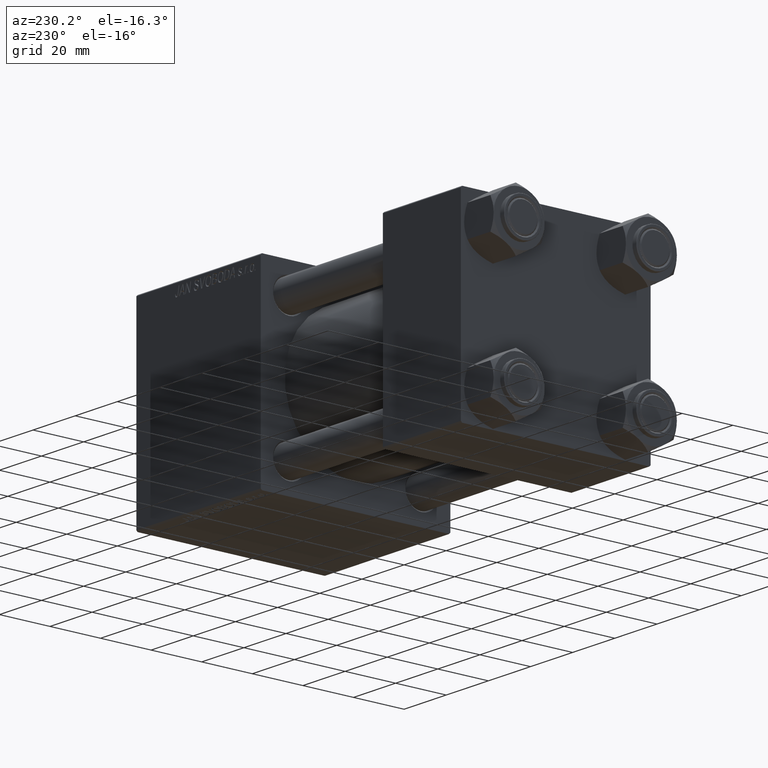
[diagram: clean part render]
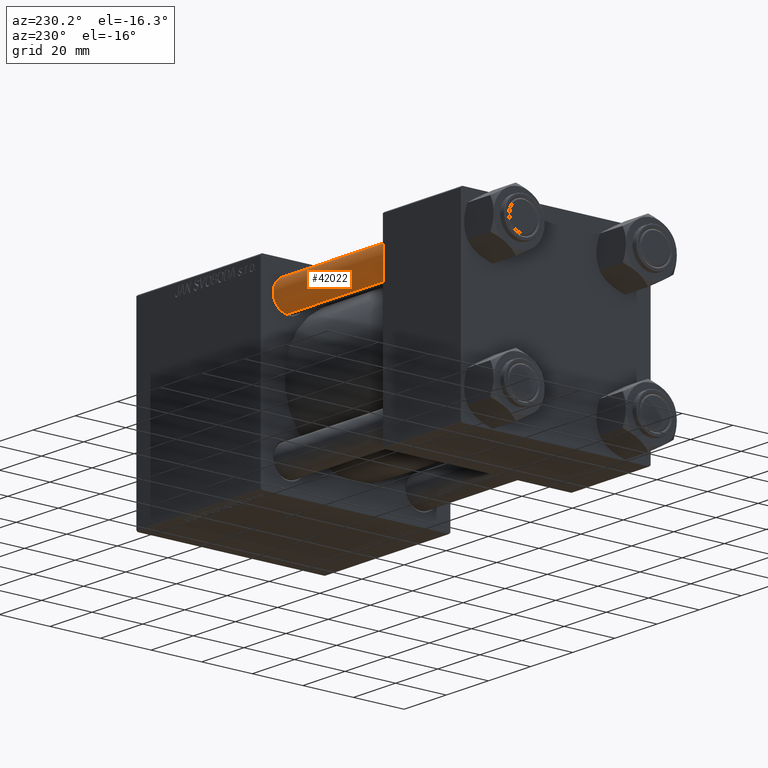
[diagram: same view with one face highlighted and labeled with its STEP entity id]
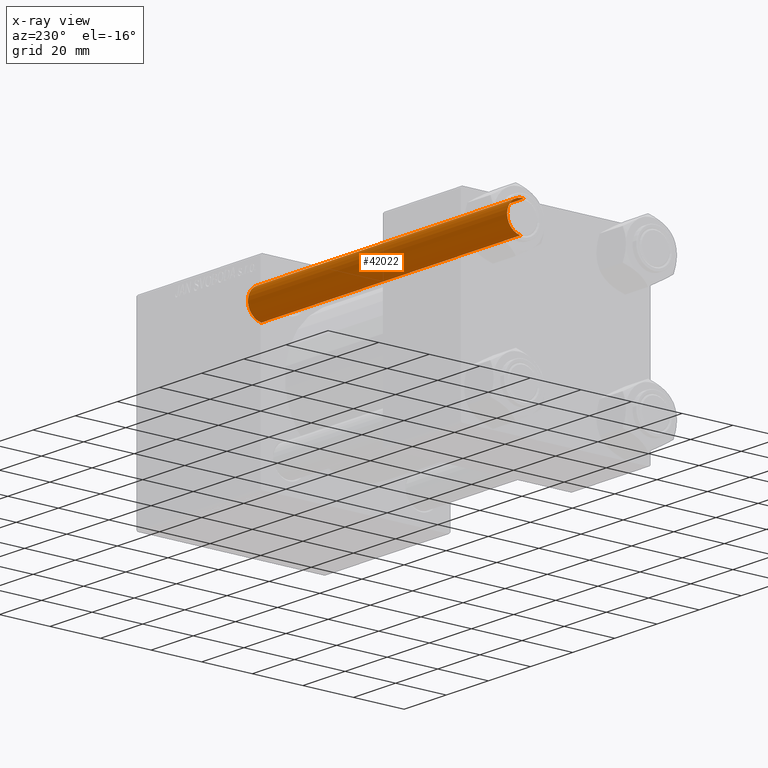
[diagram: x-ray of the same camera — body ghosted, the highlighted face saturated]
A machine part, auxiliary view. The second image highlights one B-rep face of the part: STEP entity #42022.
The next image is the same camera in x-ray: the body ghosted, the highlighted face saturated — about 0% of this face is hidden behind the body in this view.
In plain terms, the highlighted cylindrical surface (edge-blend (fillet) strip) has radius 6 mm, axis along (-1, 0, 0).
Its self-contained STEP definition (entity closure, byte-faithful):
#2367 = CARTESIAN_POINT ( 'NONE',  ( 6.000000000000000888, 7.347880794884120722E-16, 123.5000000000000426 ) ) ;
#2430 = ORIENTED_EDGE ( 'NONE', *, *, #5201, .T. ) ;
#4036 = EDGE_CURVE ( 'NONE', #18963, #17575, #44673, .T. ) ;
#5201 = EDGE_CURVE ( 'NONE', #28241, #17575, #13118, .T. ) ;
#6894 = CARTESIAN_POINT ( 'NONE',  ( 6.000000000000000888, 7.347880794884120722E-16, 124.0000000000000000 ) ) ;
#9070 = ORIENTED_EDGE ( 'NONE', *, *, #4036, .F. ) ;
#11880 = AXIS2_PLACEMENT_3D ( 'NONE', #47180, #27911, #24351 ) ;
#12324 = AXIS2_PLACEMENT_3D ( 'NONE', #28841, #44326, #25045 ) ;
#13118 = CIRCLE ( 'NONE', #12324, 6.000000000000000888 ) ;
#13223 = CARTESIAN_POINT ( 'NONE',  ( 0.000000000000000000, 0.000000000000000000, 124.0000000000000000 ) ) ;
#17131 = ORIENTED_EDGE ( 'NONE', *, *, #41762, .T. ) ;
#17575 = VERTEX_POINT ( 'NONE', #23180 ) ;
#18963 = VERTEX_POINT ( 'NONE', #31209 ) ;
#19840 = EDGE_CURVE ( 'NONE', #18963, #24763, #33756, .T. ) ;
#21646 = LINE ( 'NONE', #6894, #31476 ) ;
#23180 = CARTESIAN_POINT ( 'NONE',  ( -6.000000000000000888, 0.000000000000000000, 0.4999999999999865663 ) ) ;
#24351 = DIRECTION ( 'NONE',  ( 1.000000000000000000, 0.000000000000000000, 0.000000000000000000 ) ) ;
#24673 = DIRECTION ( 'NONE',  ( -1.000000000000000000, 0.000000000000000000, 0.000000000000000000 ) ) ;
#24763 = VERTEX_POINT ( 'NONE', #2367 ) ;
#25045 = DIRECTION ( 'NONE',  ( 1.000000000000000000, 0.000000000000000000, 0.000000000000000000 ) ) ;
#27911 = DIRECTION ( 'NONE',  ( 0.000000000000000000, 0.000000000000000000, -1.000000000000000000 ) ) ;
#28241 = VERTEX_POINT ( 'NONE', #38180 ) ;
#28814 = ORIENTED_EDGE ( 'NONE', *, *, #19840, .T. ) ;
#28841 = CARTESIAN_POINT ( 'NONE',  ( 0.000000000000000000, 0.000000000000000000, 0.4999999999999865663 ) ) ;
#31209 = CARTESIAN_POINT ( 'NONE',  ( -6.000000000000000888, 0.000000000000000000, 123.5000000000000426 ) ) ;
#31476 = VECTOR ( 'NONE', #37132, 1000.000000000000000 ) ;
#33245 = DIRECTION ( 'NONE',  ( -0.000000000000000000, -0.000000000000000000, -1.000000000000000000 ) ) ;
#33327 = VECTOR ( 'NONE', #33245, 1000.000000000000000 ) ;
#33756 = CIRCLE ( 'NONE', #11880, 6.000000000000000888 ) ;
#36077 = CYLINDRICAL_SURFACE ( 'NONE', #47683, 6.000000000000000888 ) ;
#37065 = CARTESIAN_POINT ( 'NONE',  ( -6.000000000000000888, 0.000000000000000000, 124.0000000000000000 ) ) ;
#37132 = DIRECTION ( 'NONE',  ( -0.000000000000000000, -0.000000000000000000, -1.000000000000000000 ) ) ;
#38180 = CARTESIAN_POINT ( 'NONE',  ( 6.000000000000000888, 7.347880794884120722E-16, 0.4999999999999865663 ) ) ;
#41452 = EDGE_LOOP ( 'NONE', ( #28814, #17131, #2430, #9070 ) ) ;
#41762 = EDGE_CURVE ( 'NONE', #24763, #28241, #21646, .T. ) ;
#42022 = ADVANCED_FACE ( 'NONE', ( #47490 ), #36077, .T. ) ;
#43695 = DIRECTION ( 'NONE',  ( -0.000000000000000000, -0.000000000000000000, -1.000000000000000000 ) ) ;
#44326 = DIRECTION ( 'NONE',  ( -0.000000000000000000, -0.000000000000000000, 1.000000000000000000 ) ) ;
#44673 = LINE ( 'NONE', #37065, #33327 ) ;
#47180 = CARTESIAN_POINT ( 'NONE',  ( 0.000000000000000000, 0.000000000000000000, 123.5000000000000426 ) ) ;
#47490 = FACE_OUTER_BOUND ( 'NONE', #41452, .T. ) ;
#47683 = AXIS2_PLACEMENT_3D ( 'NONE', #13223, #43695, #24673 ) ;